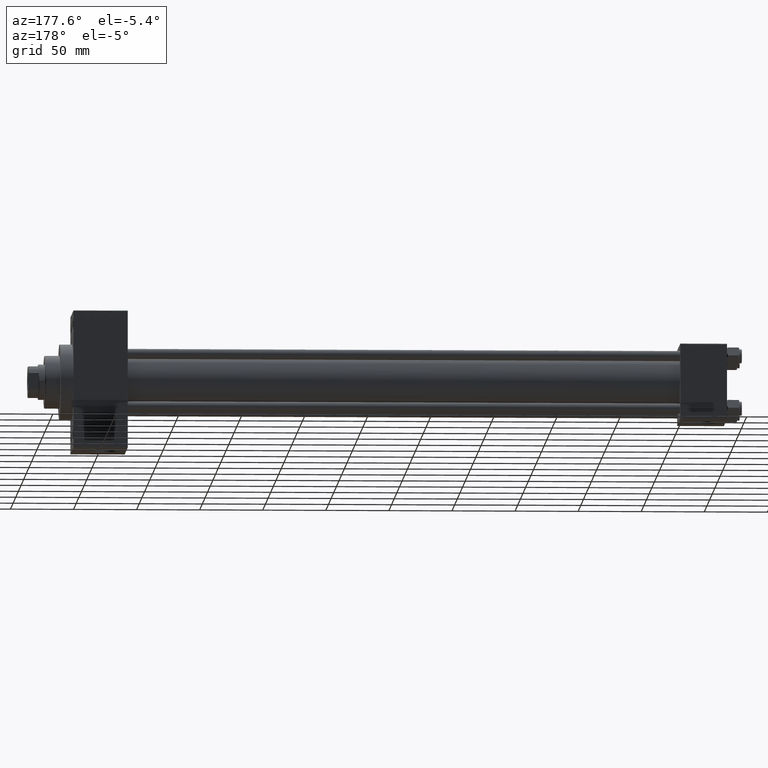
[diagram: clean part render]
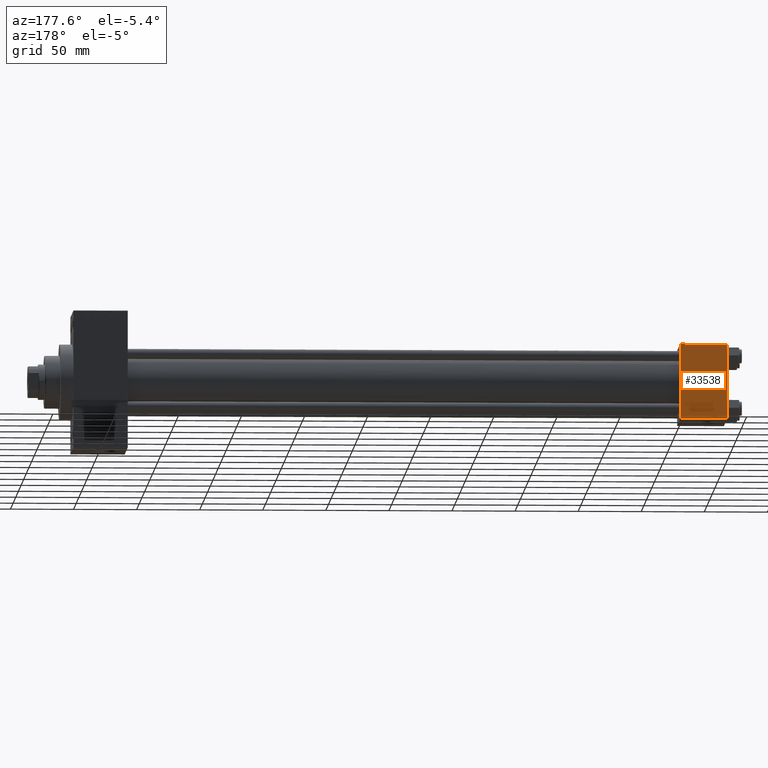
[diagram: same view with one face highlighted and labeled with its STEP entity id]
A machine part, auxiliary view. The second image highlights one B-rep face of the part: STEP entity #33538.
In plain terms, the highlighted planar face has unit normal (0, 1, 0).
Its self-contained STEP definition (entity closure, byte-faithful):
#3719 = EDGE_CURVE ( 'NONE', #36910, #27498, #33946, .T. ) ;
#6182 = VECTOR ( 'NONE', #47241, 1000.000000000000000 ) ;
#6383 = LINE ( 'NONE', #32044, #6182 ) ;
#6746 = LINE ( 'NONE', #44855, #37251 ) ;
#8078 = DIRECTION ( 'NONE',  ( -1.000000000000000000, 0.000000000000000000, 0.000000000000000000 ) ) ;
#8356 = ORIENTED_EDGE ( 'NONE', *, *, #36324, .T. ) ;
#8600 = AXIS2_PLACEMENT_3D ( 'NONE', #44744, #9858, #13851 ) ;
#9858 = DIRECTION ( 'NONE',  ( -0.000000000000000000, 1.000000000000000000, 0.000000000000000000 ) ) ;
#12911 = VECTOR ( 'NONE', #24700, 1000.000000000000000 ) ;
#13851 = DIRECTION ( 'NONE',  ( 0.000000000000000000, -0.000000000000000000, 1.000000000000000000 ) ) ;
#14307 = CARTESIAN_POINT ( 'NONE',  ( 37.00000000000000000, 29.99999999999999289, -29.50000000000000000 ) ) ;
#19305 = EDGE_CURVE ( 'NONE', #27498, #28490, #6383, .T. ) ;
#21516 = CARTESIAN_POINT ( 'NONE',  ( 37.00000000000000000, 29.99999999999999289, 29.50000000000000000 ) ) ;
#21947 = DIRECTION ( 'NONE',  ( 0.000000000000000000, 0.000000000000000000, -1.000000000000000000 ) ) ;
#24700 = DIRECTION ( 'NONE',  ( 1.000000000000000000, 0.000000000000000000, 0.000000000000000000 ) ) ;
#25439 = ORIENTED_EDGE ( 'NONE', *, *, #32828, .F. ) ;
#27061 = ORIENTED_EDGE ( 'NONE', *, *, #19305, .T. ) ;
#27498 = VERTEX_POINT ( 'NONE', #21516 ) ;
#28490 = VERTEX_POINT ( 'NONE', #14307 ) ;
#32044 = CARTESIAN_POINT ( 'NONE',  ( 37.00000000000000000, 29.99999999999999289, 30.00000000000000000 ) ) ;
#32531 = CARTESIAN_POINT ( 'NONE',  ( 0.000000000000000000, 29.99999999999999289, -29.50000000000000000 ) ) ;
#32828 = EDGE_CURVE ( 'NONE', #36910, #35254, #6746, .T. ) ;
#33538 = ADVANCED_FACE ( 'NONE', ( #47734 ), #37020, .T. ) ;
#33946 = LINE ( 'NONE', #42892, #12911 ) ;
#34486 = LINE ( 'NONE', #42213, #49294 ) ;
#35254 = VERTEX_POINT ( 'NONE', #32531 ) ;
#36324 = EDGE_CURVE ( 'NONE', #28490, #35254, #34486, .T. ) ;
#36910 = VERTEX_POINT ( 'NONE', #39772 ) ;
#37020 = PLANE ( 'NONE',  #8600 ) ;
#37251 = VECTOR ( 'NONE', #21947, 1000.000000000000000 ) ;
#39772 = CARTESIAN_POINT ( 'NONE',  ( 0.000000000000000000, 29.99999999999999289, 29.50000000000000000 ) ) ;
#42213 = CARTESIAN_POINT ( 'NONE',  ( 37.00000000000000000, 29.99999999999999289, -29.50000000000000000 ) ) ;
#42892 = CARTESIAN_POINT ( 'NONE',  ( 37.00000000000000000, 29.99999999999999289, 29.50000000000000000 ) ) ;
#44695 = ORIENTED_EDGE ( 'NONE', *, *, #3719, .T. ) ;
#44744 = CARTESIAN_POINT ( 'NONE',  ( 37.00000000000000000, 29.99999999999999289, 30.00000000000000000 ) ) ;
#44855 = CARTESIAN_POINT ( 'NONE',  ( 0.000000000000000000, 29.99999999999999289, 30.00000000000000000 ) ) ;
#45317 = EDGE_LOOP ( 'NONE', ( #27061, #8356, #25439, #44695 ) ) ;
#47241 = DIRECTION ( 'NONE',  ( 0.000000000000000000, 0.000000000000000000, -1.000000000000000000 ) ) ;
#47734 = FACE_OUTER_BOUND ( 'NONE', #45317, .T. ) ;
#49294 = VECTOR ( 'NONE', #8078, 1000.000000000000000 ) ;